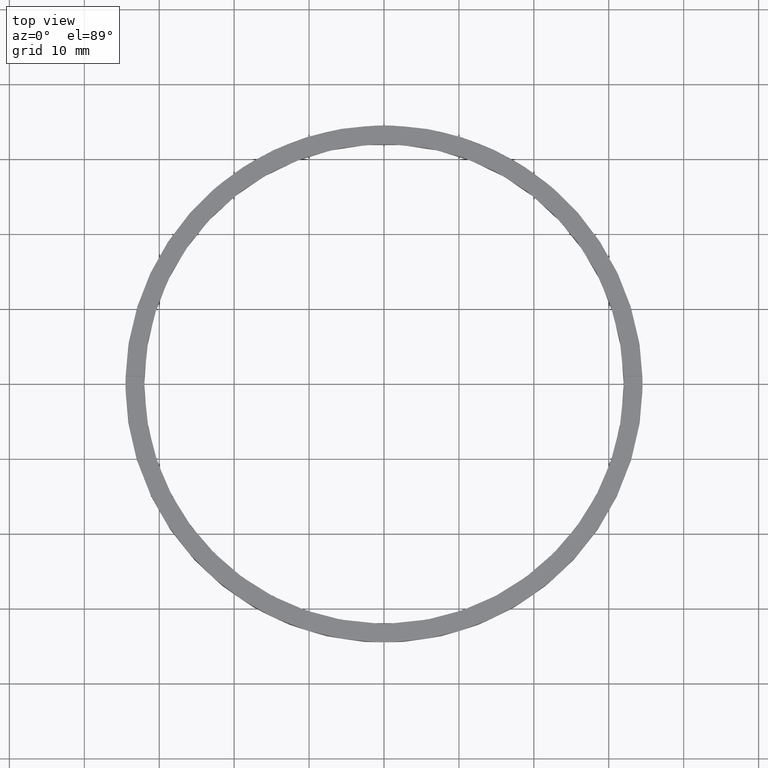
[diagram: clean part render]
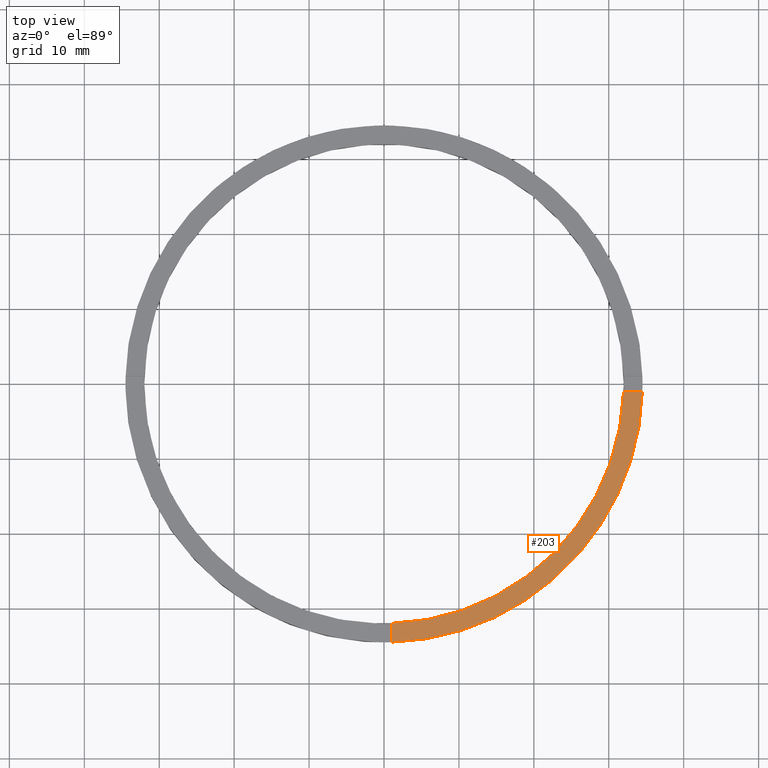
[diagram: same view with one face highlighted and labeled with its STEP entity id]
A machine part, top view. The second image highlights one B-rep face of the part: STEP entity #203.
In plain terms, the highlighted planar face has unit normal (0, 0, 1).
Its self-contained STEP definition (entity closure, byte-faithful):
#12 = AXIS2_PLACEMENT_3D ( 'NONE', #453, #564, #317 ) ;
#38 = DIRECTION ( 'NONE',  ( 0.000000000000000000, 0.000000000000000000, 1.000000000000000000 ) ) ;
#98 = EDGE_LOOP ( 'NONE', ( #738, #324, #113, #234 ) ) ;
#113 = ORIENTED_EDGE ( 'NONE', *, *, #132, .F. ) ;
#117 = DIRECTION ( 'NONE',  ( -1.301042606982605074E-16, 1.000000000000000000, -0.000000000000000000 ) ) ;
#132 = EDGE_CURVE ( 'NONE', #161, #473, #751, .T. ) ;
#159 = CIRCLE ( 'NONE', #12, 34.49999999999999289 ) ;
#161 = VERTEX_POINT ( 'NONE', #772 ) ;
#203 = ADVANCED_FACE ( 'NONE', ( #724 ), #712, .T. ) ;
#213 = VECTOR ( 'NONE', #117, 1000.000000000000000 ) ;
#229 = CARTESIAN_POINT ( 'NONE',  ( 0.9999999999998389066, -31.98437118343895591, 3.000000000000000000 ) ) ;
#234 = ORIENTED_EDGE ( 'NONE', *, *, #768, .T. ) ;
#246 = CARTESIAN_POINT ( 'NONE',  ( 31.98437118343894170, -1.000000000000158096, 3.000000000000000000 ) ) ;
#254 = CARTESIAN_POINT ( 'NONE',  ( 24.49999999999998579, -1.000000000000158762, 3.000000000000000000 ) ) ;
#282 = LINE ( 'NONE', #254, #543 ) ;
#313 = DIRECTION ( 'NONE',  ( 1.000000000000000000, 6.505213034913025371E-17, 0.000000000000000000 ) ) ;
#317 = DIRECTION ( 'NONE',  ( 1.000000000000000000, 0.000000000000000000, 0.000000000000000000 ) ) ;
#324 = ORIENTED_EDGE ( 'NONE', *, *, #468, .F. ) ;
#334 = CARTESIAN_POINT ( 'NONE',  ( 0.9999999999998380185, -24.50000000000017408, 3.000000000000000000 ) ) ;
#338 = VERTEX_POINT ( 'NONE', #246 ) ;
#341 = CARTESIAN_POINT ( 'NONE',  ( 0.000000000000000000, 0.000000000000000000, 3.000000000000000000 ) ) ;
#440 = AXIS2_PLACEMENT_3D ( 'NONE', #565, #640, #702 ) ;
#453 = CARTESIAN_POINT ( 'NONE',  ( 0.000000000000000000, 0.000000000000000000, 3.000000000000000000 ) ) ;
#468 = EDGE_CURVE ( 'NONE', #473, #338, #517, .T. ) ;
#473 = VERTEX_POINT ( 'NONE', #229 ) ;
#517 = CIRCLE ( 'NONE', #440, 32.00000000000000000 ) ;
#543 = VECTOR ( 'NONE', #313, 1000.000000000000000 ) ;
#564 = DIRECTION ( 'NONE',  ( 0.000000000000000000, 0.000000000000000000, 1.000000000000000000 ) ) ;
#565 = CARTESIAN_POINT ( 'NONE',  ( 0.000000000000000000, 0.000000000000000000, 3.000000000000000000 ) ) ;
#571 = DIRECTION ( 'NONE',  ( 1.000000000000000000, 0.000000000000000000, -0.000000000000000000 ) ) ;
#640 = DIRECTION ( 'NONE',  ( 0.000000000000000000, 0.000000000000000000, 1.000000000000000000 ) ) ;
#641 = VERTEX_POINT ( 'NONE', #781 ) ;
#642 = AXIS2_PLACEMENT_3D ( 'NONE', #341, #38, #571 ) ;
#695 = EDGE_CURVE ( 'NONE', #338, #641, #282, .T. ) ;
#702 = DIRECTION ( 'NONE',  ( 1.000000000000000000, 0.000000000000000000, 0.000000000000000000 ) ) ;
#712 = PLANE ( 'NONE',  #642 ) ;
#724 = FACE_OUTER_BOUND ( 'NONE', #98, .T. ) ;
#738 = ORIENTED_EDGE ( 'NONE', *, *, #695, .F. ) ;
#751 = LINE ( 'NONE', #334, #213 ) ;
#768 = EDGE_CURVE ( 'NONE', #161, #641, #159, .T. ) ;
#772 = CARTESIAN_POINT ( 'NONE',  ( 0.9999999999998393507, -34.48550420104076153, 3.000000000000000000 ) ) ;
#781 = CARTESIAN_POINT ( 'NONE',  ( 34.48550420104075442, -1.000000000000158096, 3.000000000000000000 ) ) ;